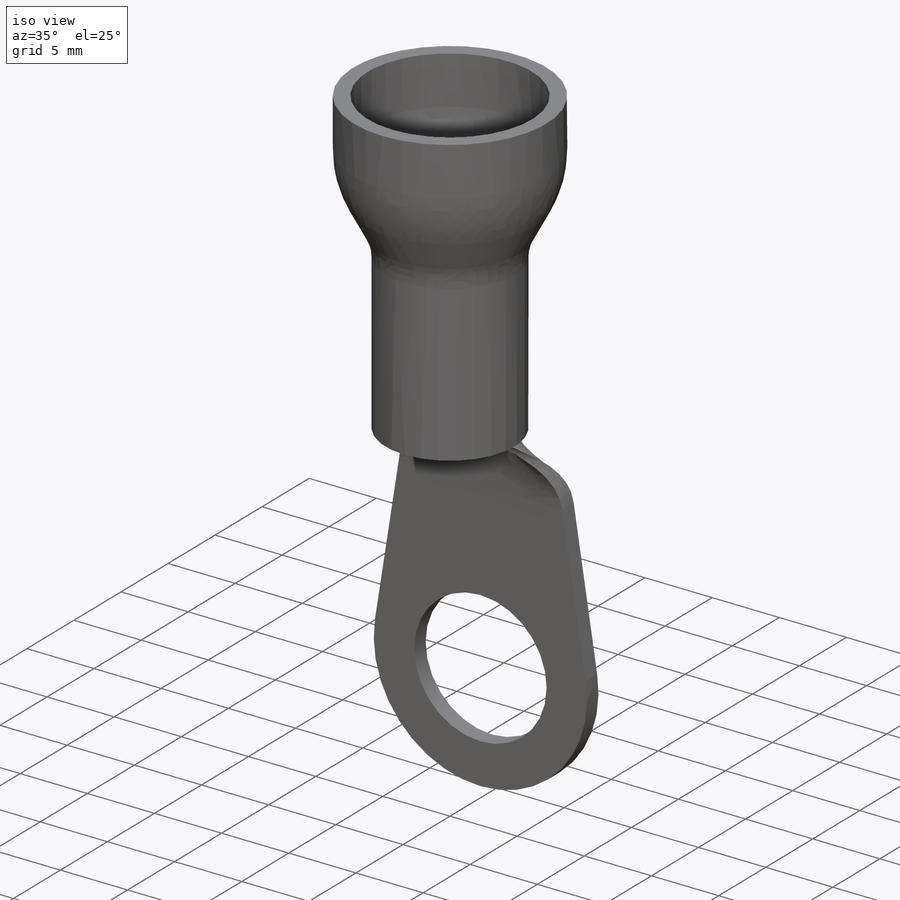
[diagram: iso view]
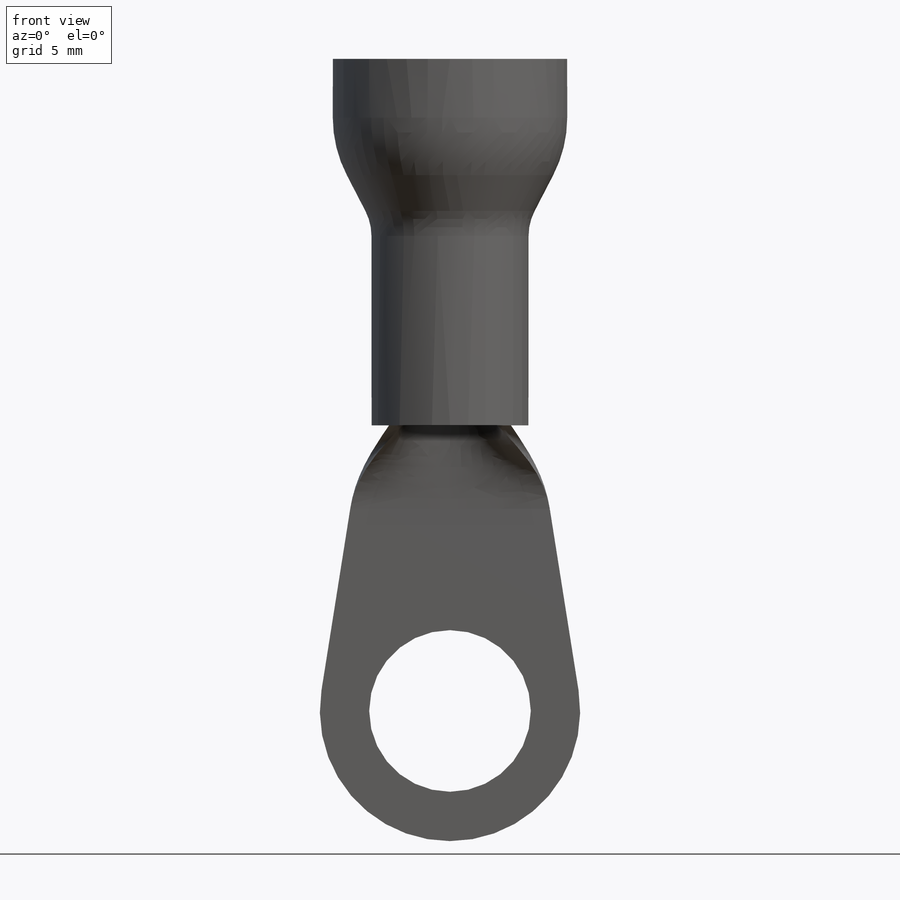
[diagram: front view]
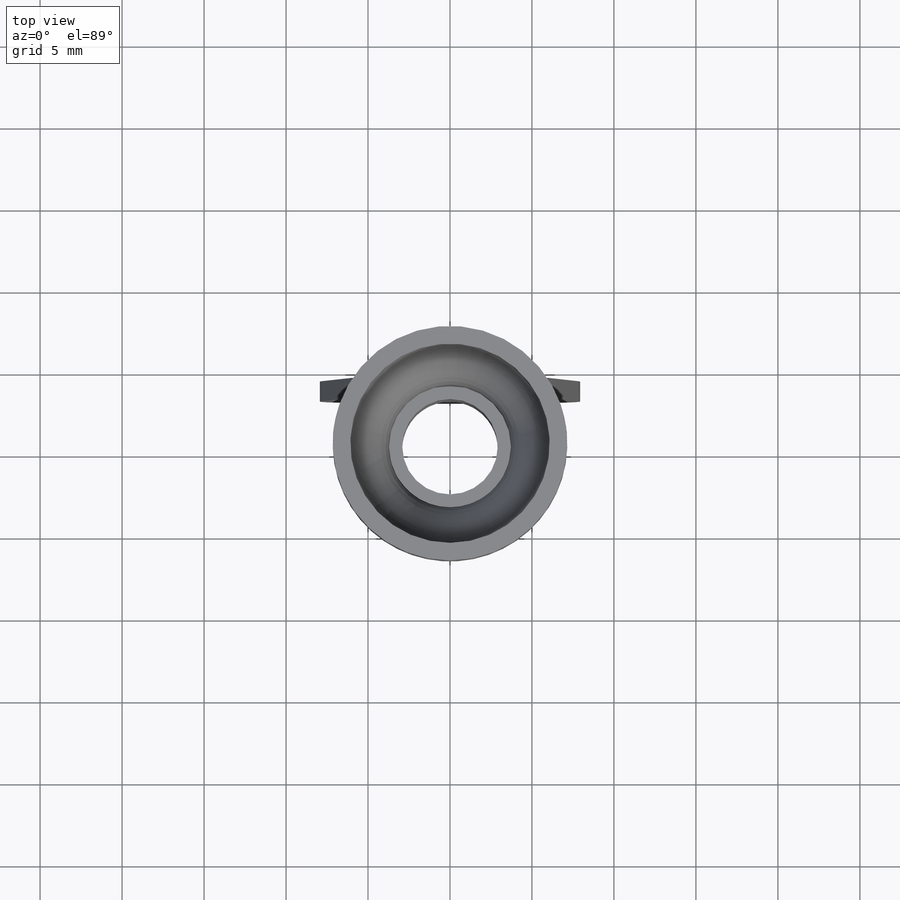
[diagram: top view]
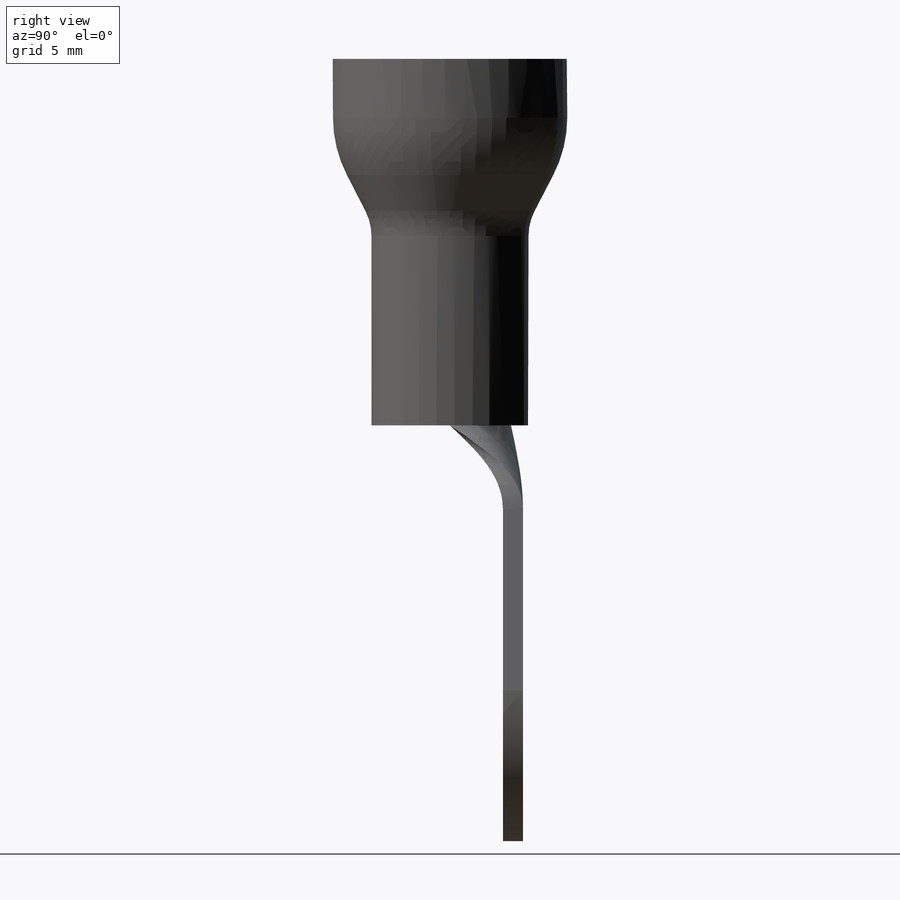
[diagram: right view]
SOLIDWORKS PART (.sldprt)
format: sldprt  version: not decoded by parser v0  size: 258,048 bytes
history: native  units: mm
features: sketch x5, fillet x4, material x1, revolve x1, extrude x1, cut_extrude x1 (+12 scaffold rows collapsed)
feature tree (25):
  scaffold x12  (default folders/planes/origin — collapsed)
  material  "Material <not specified>"
  sketch  "Sketch1"  dims[c1.D7=7.62mm c1.D8=6.5532mm c1.D11=~3.299843mm c1.D12=~4.366643mm c1.D14=6.5532mm c1.D1=5.82mm c1.D2=9.58mm c1.D3=12.16mm c1.D4=14.3044mm c1.D5=22.352mm c1.D6=10.16mm c1.D9=2.455mm c1.D10=7.4356mm c1.D13=5.185mm c2.D7=5.44mm c2.D8=12.365mm]
  revolve  "Revolve1"  Angle=360deg
  sketch  "Sketch2"  dims[D2=9.8552mm D4=7.9375mm D1=5.08mm D3=12.3317mm D5=~11.090007mm D6=12.1666mm]
  extrude  "Extrude1"  Depth=1.22mm
  cut_extrude  "Extrude2"  [1 undecoded]
  sketch  "Sketch"
  sketch  "Sketch3"  dims[D1=2.9083mm D2=0.8128mm]
  sketch  "Sketch4"  dims[D1=0.0mm]
  fillet  "Fillet1"  Radius=6.55mm
  fillet  "Fillet2"  Radius=4.37mm
  fillet  "Fillet3"  Radius=7.62mm
  fillet  "Fillet4"  Radius=3.299843mm
decode coverage: 10 of 12 modeling features carry decoded parameters
note: ~ marks probable driven/reference dimensions
note: 1 parameter value undecoded
note: suppression state not decoded; provenance and decode notes live in map.json
